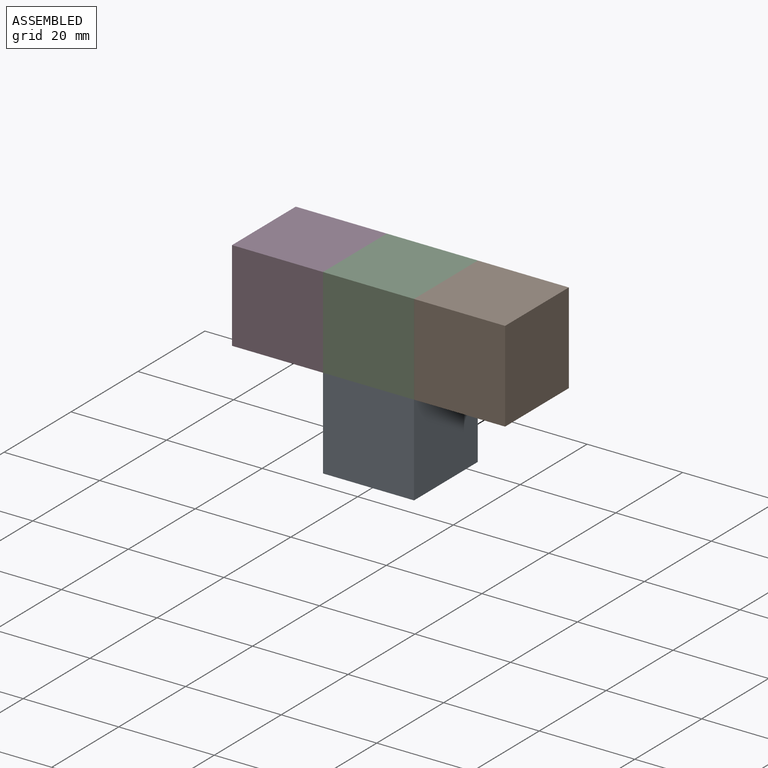
[diagram: assembled view]
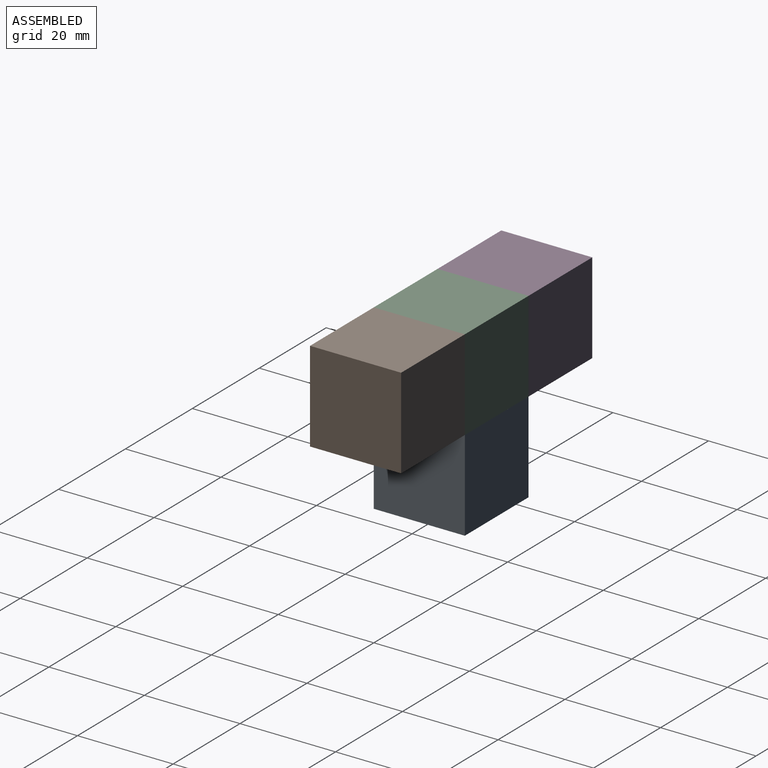
[diagram: assembled view, second angle]
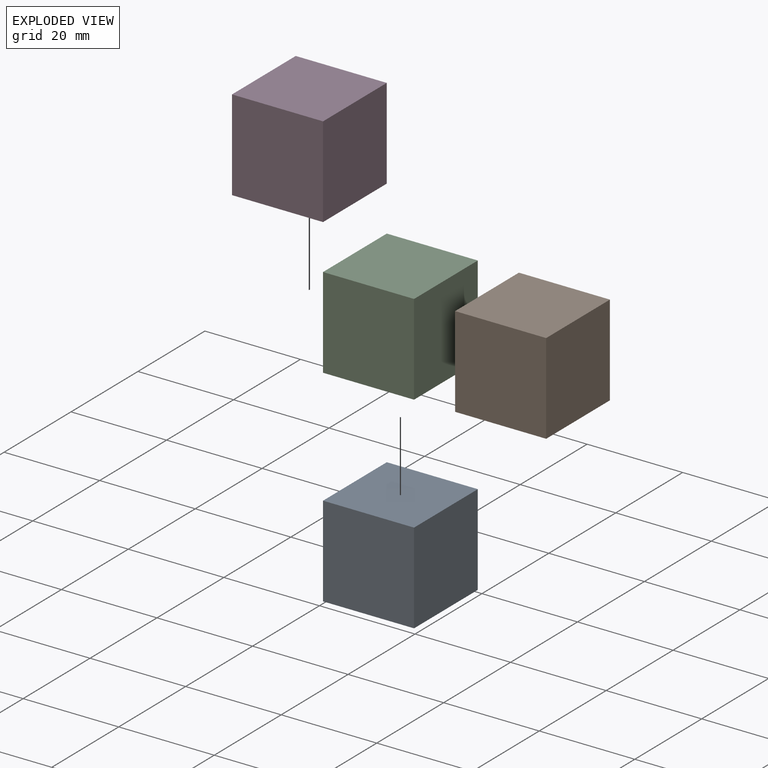
[diagram: exploded view]
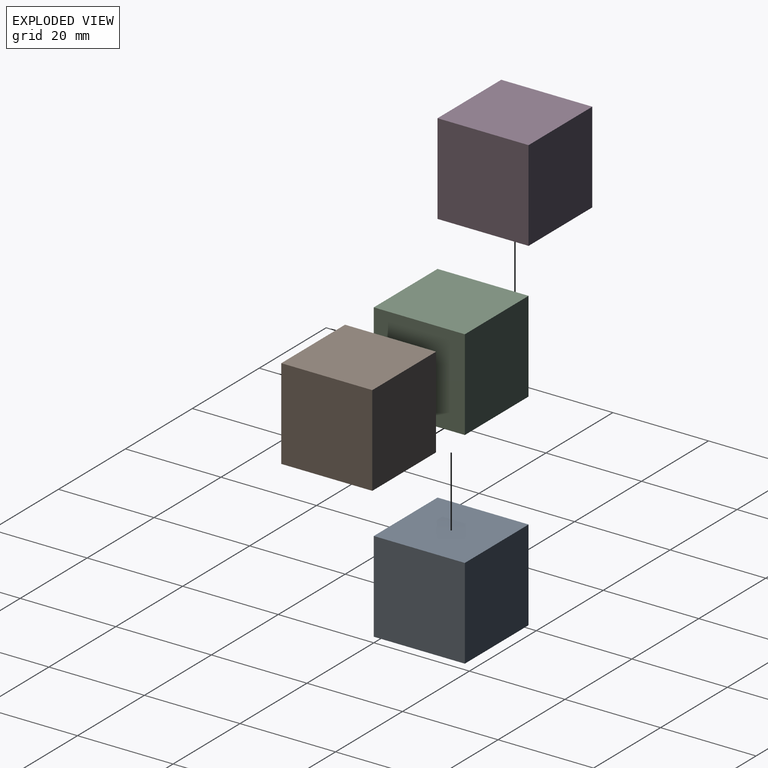
[diagram: exploded view, second angle]
ASSEMBLY  parts=4 mates=9
PART A: 6 faces, bbox 19.1x19.1x19.1 mm
  f0: plane 19.05x19.05mm, normal (0,0,1), area 362.9mm2, adj f1,f3,f4,f5
  f1: plane 19.05x19.05mm, normal (-1,0,0), area 362.9mm2, adj f0,f2,f4,f5
  f2: plane 19.05x19.05mm, normal (0,0,-1), area 362.9mm2, adj f1,f3,f4,f5
  f3: plane 19.05x19.05mm, normal (1,0,0), area 362.9mm2, adj f0,f2,f4,f5
  f4: plane 19.05x19.05mm, normal (0,-1,0), area 362.9mm2, adj f0,f1,f2,f3
  f5: plane 19.05x19.05mm, normal (0,1,0), area 362.9mm2, adj f0,f1,f2,f3
PART B: same geometry as A
PART C: same geometry as A
PART D: same geometry as A
PLACE A t=(-0.13,18.96,0)mm
PLACE B t=(18.92,18.96,19.05)mm
PLACE C t=(-0.13,18.96,19.05)mm
PLACE D t=(-19.18,18.96,19.05)mm
MATE planar C.f4 <-> B.f4  axis (0,-1,0) through (-9.65,-0.09,28.57)mm
MATE planar C.f3 <-> B.f1  axis (1,0,0) through (-0.13,9.43,28.57)mm
MATE planar A.f3 <-> C.f3  axis (1,0,0) through (-0.13,9.43,9.52)mm
MATE planar C.f0 <-> D.f0  axis (0,0,1) through (-9.65,9.43,38.1)mm
MATE planar A.f4 <-> C.f4  axis (0,-1,0) through (-9.65,-0.09,9.52)mm
MATE planar B.f0 <-> C.f0  axis (0,0,1) through (9.4,9.43,38.1)mm
MATE planar D.f3 <-> C.f1  axis (1,0,0) through (-19.18,9.43,28.57)mm
MATE planar C.f4 <-> D.f4  axis (0,-1,0) through (-9.65,-0.09,28.57)mm
MATE planar A.f0 <-> C.f2  axis (0,0,1) through (-9.65,9.43,19.05)mm
